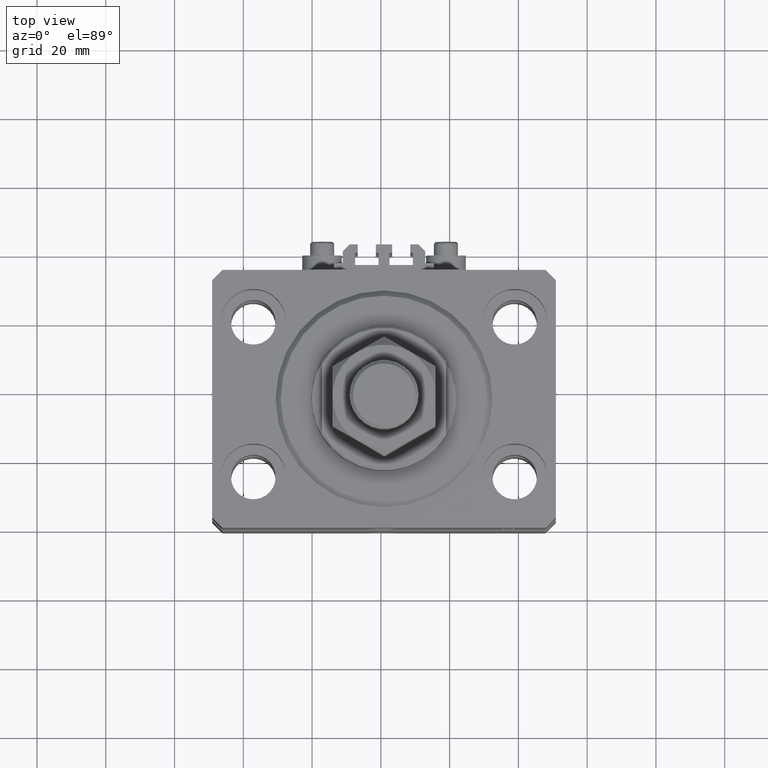
[diagram: clean part render]
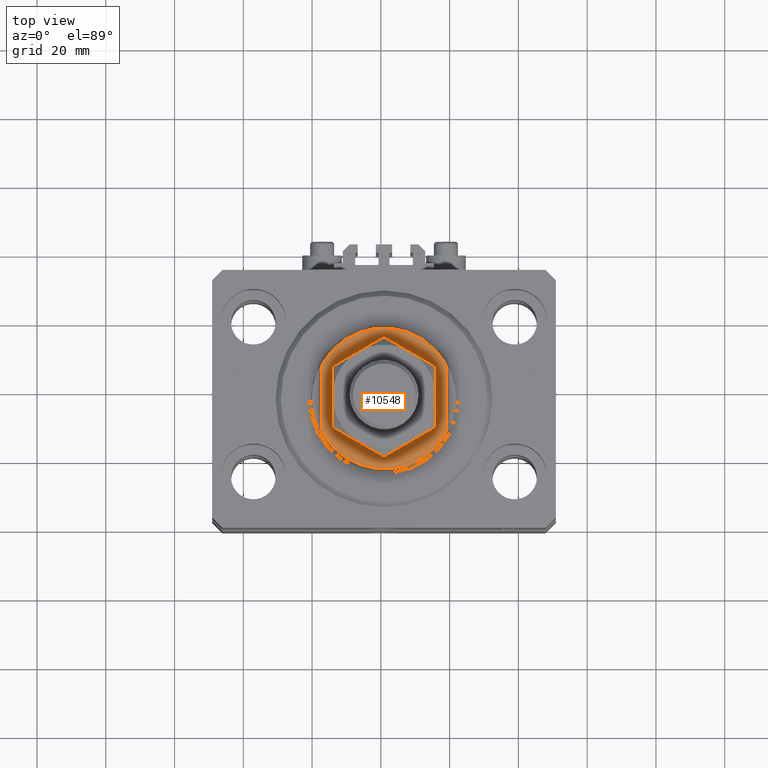
[diagram: same view with one face highlighted and labeled with its STEP entity id]
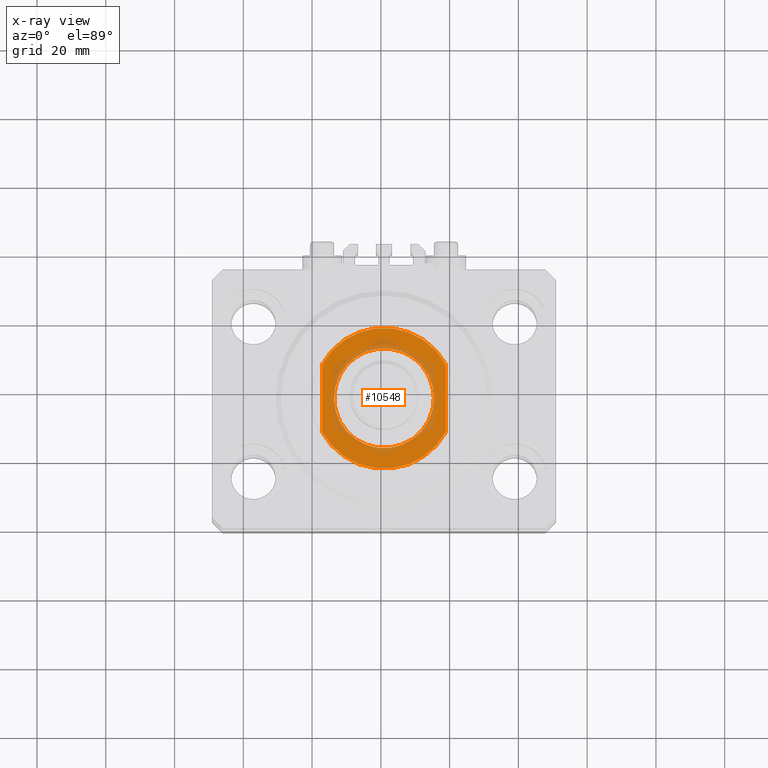
[diagram: x-ray of the same camera — body ghosted, the highlighted face saturated]
A machine part, top view. The second image highlights one B-rep face of the part: STEP entity #10548.
The next image is the same camera in x-ray: the body ghosted, the highlighted face saturated — about 22% of this face is hidden behind the body in this view.
In plain terms, the highlighted planar face has unit normal (0, 0, 1).
Its self-contained STEP definition (entity closure, byte-faithful):
#1127 = PLANE ( 'NONE',  #32058 ) ;
#1774 = DIRECTION ( 'NONE',  ( 0.000000000000000000, 0.000000000000000000, -1.000000000000000000 ) ) ;
#2187 = CARTESIAN_POINT ( 'NONE',  ( -18.00000000000000000, 9.810708435174301911, -8.000000000000000000 ) ) ;
#2753 = DIRECTION ( 'NONE',  ( -0.000000000000000000, -1.000000000000000000, -0.000000000000000000 ) ) ;
#3571 = ORIENTED_EDGE ( 'NONE', *, *, #41486, .T. ) ;
#6680 = AXIS2_PLACEMENT_3D ( 'NONE', #46191, #11098, #12073 ) ;
#7244 = EDGE_CURVE ( 'NONE', #9281, #22605, #22333, .T. ) ;
#8094 = EDGE_LOOP ( 'NONE', ( #3571, #42060 ) ) ;
#9281 = VERTEX_POINT ( 'NONE', #2187 ) ;
#9344 = CARTESIAN_POINT ( 'NONE',  ( 18.00000000000000000, -41.24318125460256113, -8.000000000000000000 ) ) ;
#9731 = DIRECTION ( 'NONE',  ( 0.000000000000000000, 0.000000000000000000, -1.000000000000000000 ) ) ;
#10004 = AXIS2_PLACEMENT_3D ( 'NONE', #13145, #17143, #47515 ) ;
#10548 = ADVANCED_FACE ( 'NONE', ( #35733, #27514 ), #1127, .T. ) ;
#11098 = DIRECTION ( 'NONE',  ( -0.000000000000000000, -0.000000000000000000, 1.000000000000000000 ) ) ;
#12073 = DIRECTION ( 'NONE',  ( -1.000000000000000000, 0.000000000000000000, 0.000000000000000000 ) ) ;
#13145 = CARTESIAN_POINT ( 'NONE',  ( 0.000000000000000000, 0.000000000000000000, -8.000000000000000000 ) ) ;
#13318 = LINE ( 'NONE', #9344, #48814 ) ;
#13678 = EDGE_CURVE ( 'NONE', #19219, #27528, #29774, .T. ) ;
#16701 = CARTESIAN_POINT ( 'NONE',  ( -14.49999999999998579, 0.000000000000000000, -8.000000000000000000 ) ) ;
#16971 = DIRECTION ( 'NONE',  ( -1.000000000000000000, 0.000000000000000000, 0.000000000000000000 ) ) ;
#17072 = DIRECTION ( 'NONE',  ( 0.000000000000000000, -1.000000000000000000, -0.000000000000000000 ) ) ;
#17143 = DIRECTION ( 'NONE',  ( -0.000000000000000000, -0.000000000000000000, 1.000000000000000000 ) ) ;
#17162 = EDGE_CURVE ( 'NONE', #22605, #29922, #13318, .T. ) ;
#17703 = LINE ( 'NONE', #21676, #24320 ) ;
#19219 = VERTEX_POINT ( 'NONE', #41942 ) ;
#19719 = VERTEX_POINT ( 'NONE', #42365 ) ;
#20729 = EDGE_CURVE ( 'NONE', #9281, #19719, #17703, .T. ) ;
#21676 = CARTESIAN_POINT ( 'NONE',  ( -18.00000000000000000, -41.24318125460256113, -8.000000000000000000 ) ) ;
#22333 = CIRCLE ( 'NONE', #44618, 20.50000000000000355 ) ;
#22605 = VERTEX_POINT ( 'NONE', #42605 ) ;
#22893 = CIRCLE ( 'NONE', #23677, 20.50000000000000355 ) ;
#23677 = AXIS2_PLACEMENT_3D ( 'NONE', #24435, #9731, #39649 ) ;
#24320 = VECTOR ( 'NONE', #2753, 1000.000000000000000 ) ;
#24433 = CARTESIAN_POINT ( 'NONE',  ( 0.000000000000000000, 0.000000000000000000, -8.000000000000000000 ) ) ;
#24435 = CARTESIAN_POINT ( 'NONE',  ( 0.000000000000000000, 0.000000000000000000, -8.000000000000000000 ) ) ;
#25367 = ORIENTED_EDGE ( 'NONE', *, *, #45744, .T. ) ;
#27514 = FACE_OUTER_BOUND ( 'NONE', #43144, .T. ) ;
#27528 = VERTEX_POINT ( 'NONE', #16701 ) ;
#29774 = CIRCLE ( 'NONE', #6680, 14.49999999999998579 ) ;
#29878 = CIRCLE ( 'NONE', #10004, 14.49999999999998579 ) ;
#29922 = VERTEX_POINT ( 'NONE', #41793 ) ;
#32058 = AXIS2_PLACEMENT_3D ( 'NONE', #49259, #37821, #46696 ) ;
#35733 = FACE_BOUND ( 'NONE', #8094, .T. ) ;
#37821 = DIRECTION ( 'NONE',  ( 0.000000000000000000, 0.000000000000000000, -1.000000000000000000 ) ) ;
#39445 = ORIENTED_EDGE ( 'NONE', *, *, #17162, .T. ) ;
#39649 = DIRECTION ( 'NONE',  ( -1.000000000000000000, 0.000000000000000000, 0.000000000000000000 ) ) ;
#41486 = EDGE_CURVE ( 'NONE', #27528, #19219, #29878, .T. ) ;
#41793 = CARTESIAN_POINT ( 'NONE',  ( 18.00000000000000000, -9.810708435174301911, -8.000000000000000000 ) ) ;
#41942 = CARTESIAN_POINT ( 'NONE',  ( 14.49999999999998579, 1.775737858763660437E-15, -8.000000000000000000 ) ) ;
#42060 = ORIENTED_EDGE ( 'NONE', *, *, #13678, .T. ) ;
#42365 = CARTESIAN_POINT ( 'NONE',  ( -18.00000000000000000, -9.810708435174301911, -8.000000000000000000 ) ) ;
#42605 = CARTESIAN_POINT ( 'NONE',  ( 18.00000000000000000, 9.810708435174301911, -8.000000000000000000 ) ) ;
#43144 = EDGE_LOOP ( 'NONE', ( #43210, #39445, #25367, #45263 ) ) ;
#43210 = ORIENTED_EDGE ( 'NONE', *, *, #7244, .T. ) ;
#44618 = AXIS2_PLACEMENT_3D ( 'NONE', #24433, #1774, #16971 ) ;
#45263 = ORIENTED_EDGE ( 'NONE', *, *, #20729, .F. ) ;
#45744 = EDGE_CURVE ( 'NONE', #29922, #19719, #22893, .T. ) ;
#46191 = CARTESIAN_POINT ( 'NONE',  ( 0.000000000000000000, 0.000000000000000000, -8.000000000000000000 ) ) ;
#46696 = DIRECTION ( 'NONE',  ( -1.000000000000000000, 0.000000000000000000, -0.000000000000000000 ) ) ;
#47515 = DIRECTION ( 'NONE',  ( -1.000000000000000000, 0.000000000000000000, 0.000000000000000000 ) ) ;
#48814 = VECTOR ( 'NONE', #17072, 1000.000000000000000 ) ;
#49259 = CARTESIAN_POINT ( 'NONE',  ( 0.000000000000000000, 0.000000000000000000, -8.000000000000000000 ) ) ;